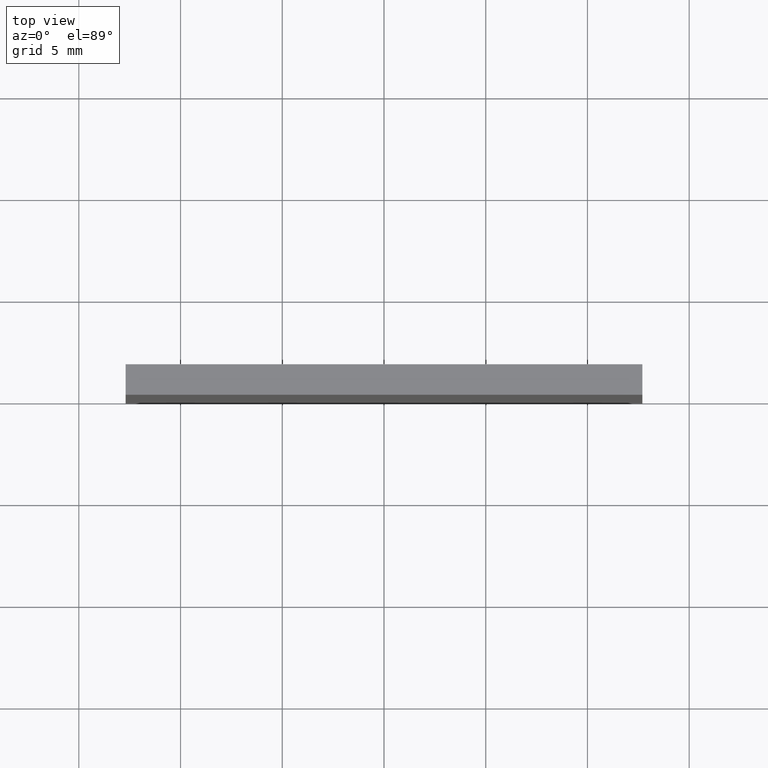
[diagram: clean part render]
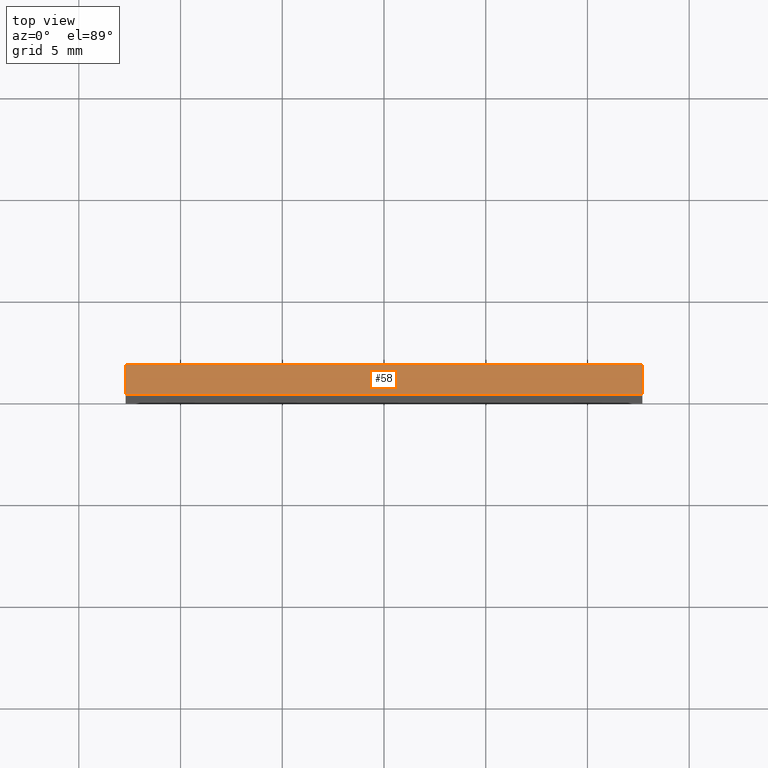
[diagram: same view with one face highlighted and labeled with its STEP entity id]
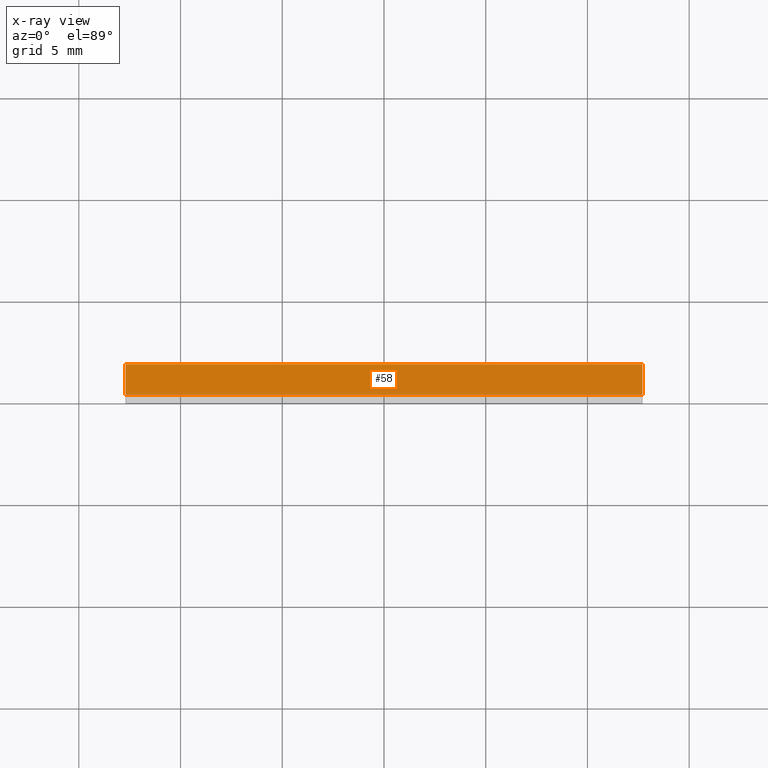
[diagram: x-ray of the same camera — body ghosted, the highlighted face saturated]
A machine part, top view. The second image highlights one B-rep face of the part: STEP entity #58.
The next image is the same camera in x-ray: the body ghosted, the highlighted face saturated — about 0% of this face is hidden behind the body in this view.
In plain terms, the highlighted planar face has unit normal (0, 0, -1).
Its self-contained STEP definition (entity closure, byte-faithful):
#7 = LINE ( 'NONE', #185, #176 ) ;
#10 = EDGE_LOOP ( 'NONE', ( #178, #179, #180, #52 ) ) ;
#11 = VERTEX_POINT ( 'NONE', #111 ) ;
#35 = VERTEX_POINT ( 'NONE', #47 ) ;
#45 = VERTEX_POINT ( 'NONE', #145 ) ;
#46 = DIRECTION ( 'NONE',  ( -1.000000000000000000, 0.0000000000000000000, -0.0000000000000000000 ) ) ;
#47 = CARTESIAN_POINT ( 'NONE',  ( 12.69999999999999800, 0.0000000000000000000, 12.69999999999999900 ) ) ;
#52 = ORIENTED_EDGE ( 'NONE', *, *, #191, .T. ) ;
#57 = AXIS2_PLACEMENT_3D ( 'NONE', #82, #143, #46 ) ;
#58 = ADVANCED_FACE ( 'NONE', ( #159 ), #94, .F. ) ;
#80 = EDGE_CURVE ( 'NONE', #11, #35, #144, .T. ) ;
#82 = CARTESIAN_POINT ( 'NONE',  ( -12.70000000000000100, 1.500000000000000000, 12.69999999999999900 ) ) ;
#90 = LINE ( 'NONE', #113, #125 ) ;
#91 = VECTOR ( 'NONE', #127, 1000.000000000000000 ) ;
#94 = PLANE ( 'NONE',  #57 ) ;
#95 = LINE ( 'NONE', #133, #135 ) ;
#103 = DIRECTION ( 'NONE',  ( 1.000000000000000000, 0.0000000000000000000, 0.0000000000000000000 ) ) ;
#111 = CARTESIAN_POINT ( 'NONE',  ( 12.69999999999999800, 1.500000000000000000, 12.69999999999999900 ) ) ;
#113 = CARTESIAN_POINT ( 'NONE',  ( -12.70000000000000100, 0.0000000000000000000, 12.69999999999999900 ) ) ;
#125 = VECTOR ( 'NONE', #189, 1000.000000000000000 ) ;
#127 = DIRECTION ( 'NONE',  ( -0.0000000000000000000, -1.000000000000000000, -0.0000000000000000000 ) ) ;
#133 = CARTESIAN_POINT ( 'NONE',  ( -12.70000000000000100, 1.500000000000000000, 12.69999999999999900 ) ) ;
#134 = CARTESIAN_POINT ( 'NONE',  ( -12.70000000000000100, 0.0000000000000000000, 12.69999999999999900 ) ) ;
#135 = VECTOR ( 'NONE', #170, 1000.000000000000000 ) ;
#141 = VERTEX_POINT ( 'NONE', #134 ) ;
#143 = DIRECTION ( 'NONE',  ( 0.0000000000000000000, 0.0000000000000000000, -1.000000000000000000 ) ) ;
#144 = LINE ( 'NONE', #181, #91 ) ;
#145 = CARTESIAN_POINT ( 'NONE',  ( -12.70000000000000100, 1.500000000000000000, 12.69999999999999900 ) ) ;
#147 = EDGE_CURVE ( 'NONE', #45, #11, #7, .T. ) ;
#156 = EDGE_CURVE ( 'NONE', #141, #35, #90, .T. ) ;
#159 = FACE_OUTER_BOUND ( 'NONE', #10, .T. ) ;
#170 = DIRECTION ( 'NONE',  ( -0.0000000000000000000, -1.000000000000000000, -0.0000000000000000000 ) ) ;
#176 = VECTOR ( 'NONE', #103, 1000.000000000000000 ) ;
#178 = ORIENTED_EDGE ( 'NONE', *, *, #156, .T. ) ;
#179 = ORIENTED_EDGE ( 'NONE', *, *, #80, .F. ) ;
#180 = ORIENTED_EDGE ( 'NONE', *, *, #147, .F. ) ;
#181 = CARTESIAN_POINT ( 'NONE',  ( 12.69999999999999800, 1.500000000000000000, 12.69999999999999900 ) ) ;
#185 = CARTESIAN_POINT ( 'NONE',  ( -12.70000000000000100, 1.500000000000000000, 12.69999999999999900 ) ) ;
#189 = DIRECTION ( 'NONE',  ( 1.000000000000000000, 0.0000000000000000000, 0.0000000000000000000 ) ) ;
#191 = EDGE_CURVE ( 'NONE', #45, #141, #95, .T. ) ;